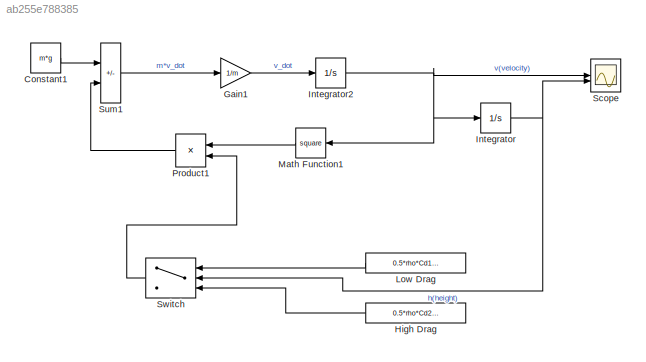
MODEL slx_ab255e788385
KIND model
CONFIG AbsTol = auto
CONFIG EnableMultiTasking = off
CONFIG FixedStep = auto
CONFIG MaxStep = auto
CONFIG MinStep = auto
CONFIG RelTol = 1e-3
CONFIG SampleTimeConstraint = Unconstrained
CONFIG SolverName = VariableStepAuto
CONFIG StartFcn = learning.simulink.modelCallbacks.startFunction(gcs)
CONFIG StartTime = 0.0
CONFIG StopFcn = learning.simulink.modelCallbacks.stopFunction(gcs);
CONFIG StopTime = 2.5
WORKSPACE source: mxarray member
WORKSPACE courseObject: object (value not decoded)
WORKSPACE t_ans = [0 2.00950914521e-05 0.000120570548712 0.000622947835014 0.00313483426652 0.0156942664241 0.0656942664241 0.115694266424 0.165694266424 0.215694266424 0.265694266424 0.315694266424 ... (58 elements, 58x1)]
WORKSPACE y_ans = [0 -0.00020095269191 -0.00120576947271 -0.00623118635213 -0.0313915881622 -0.158025658622 -0.811886886796 -1.92341395295 -3.11961857753 -4.39848606086 -5.75791544636 -7.19573192321 ... (109 elements, 109x1)]
WORKSPACE y_ans2 = [60 59.9997990471 59.9987942238 59.9937686328 59.9686038259 59.8418585583 59.1851106103 58.0601614461 56.8381509288 55.5192576032 54.1036738006 52.591605528 ... (109 elements, 109x1)]
WORKSPACE y_ans3 = [60 59.9997990471 59.9987942238 59.9937686328 59.9686038259 59.8418585583 59.3220582559 58.7779462171 58.2095423654 57.616867496 56.9999432736 56.3587922284 ... (58 elements, 58x1)]
BLOCK [Constant] Constant1
  Value = m*g
BLOCK [Gain] Gain1
  Gain = 1/m
BLOCK [Constant] High Drag
  Value = 0.5*rho*Cd2*A2
BLOCK [Integrator] Integrator
  InitialCondition = 60
BLOCK [Integrator] Integrator2
  InitialCondition = -10
BLOCK [Constant] Low Drag
  Value = 0.5*rho*Cd1*A1
BLOCK [Math] Math Function1
  Operator = square
  SignedPower = on
BLOCK [Product] Product1
BLOCK [Scope] Scope
  Floating = off
  NumInputPorts = 2
  ScopeSpecificationString = Simulink.scopes.TimeScopeBlockCfg('CurrentConfiguration', extmgr.ConfigurationSet(extmgr.Configuration('Core','General UI',true),extmgr.Configuration('Core','Source UI',true),extmgr.Configuration('Sources','WiredSimulink',true),extmgr.Configuration('Visuals','Time Domain',true,'SerializedDisplays',{struct('MinYLimReal','-42.20702','MaxYLimReal','71.35634','YLabelReal','','MinYLimMag','0.00000','Ma...<+1498ch>
BLOCK [Sum] Sum1
  IconShape = rectangular
  Inputs = -+
BLOCK [Switch] Switch
  InputSameDT = off
  SaturateOnIntegerOverflow = off
  Threshold = 15
LINE Constant1:1 -> Sum1:1
LINE Gain1:1 -> Integrator2:1
LINE High Drag:1 -> Switch:3
NET Integrator2:1 -> Integrator:1, Math Function1:1, Scope:1
NET Integrator:1 -> Scope:2, Switch:2
LINE Low Drag:1 -> Switch:1
LINE Math Function1:1 -> Product1:1
LINE Product1:1 -> Sum1:2
LINE Sum1:1 -> Gain1:1
LINE Switch:1 -> Product1:2
note: NET lines group one-source signal fan-out (src -> all destinations, sorted); 1:1 wires keep LINE
